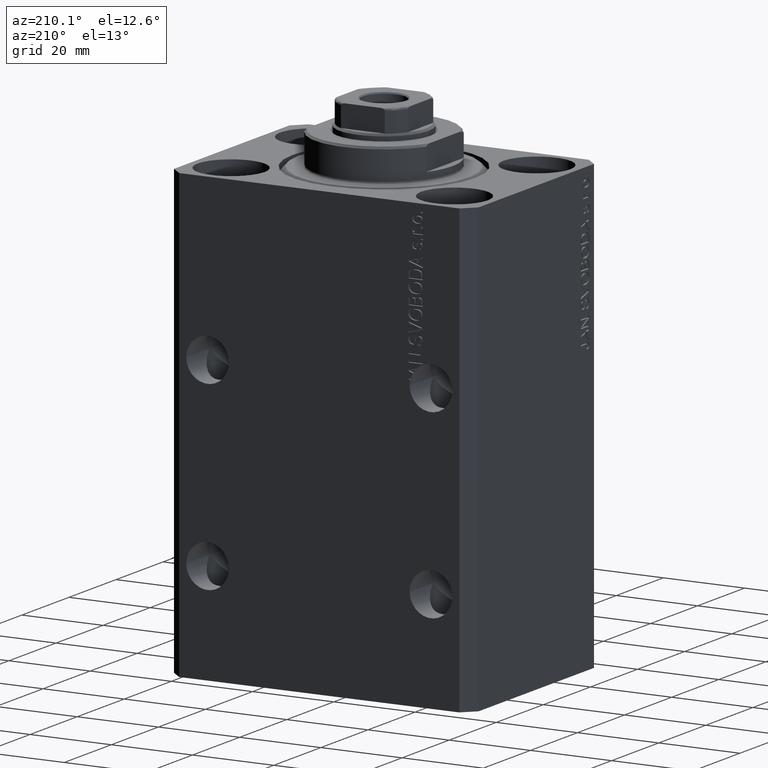
[diagram: clean part render]
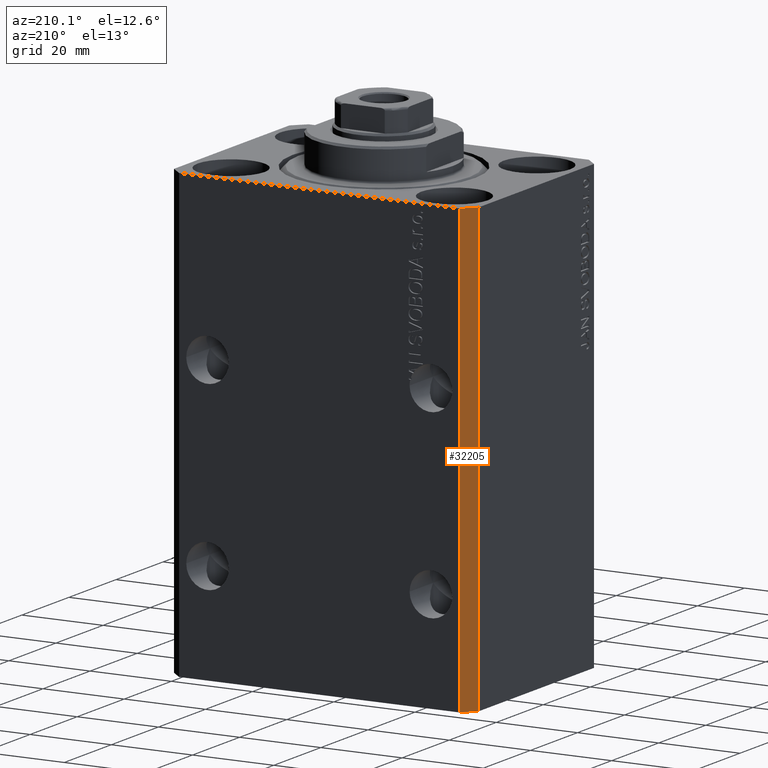
[diagram: same view with one face highlighted and labeled with its STEP entity id]
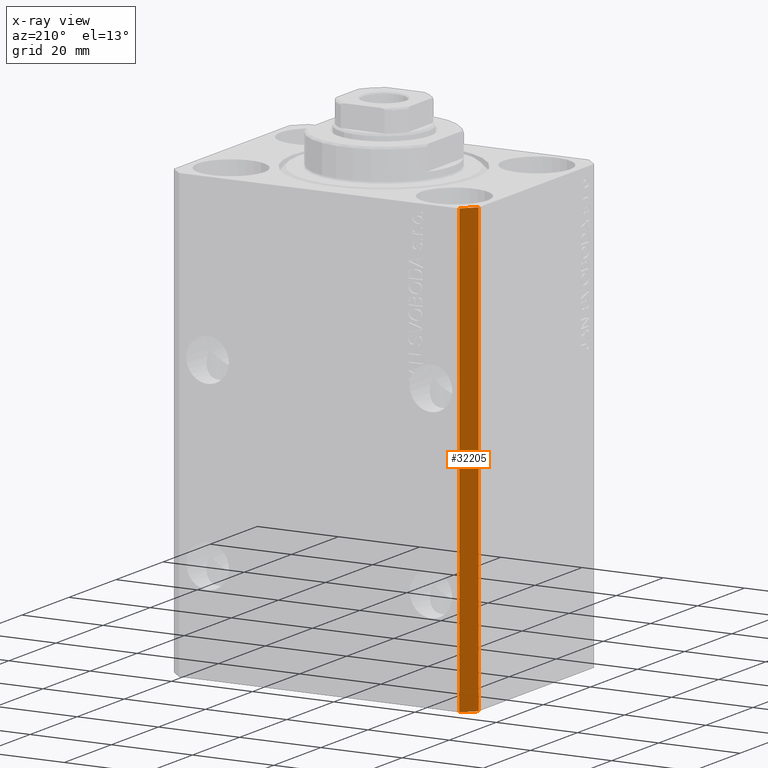
[diagram: x-ray of the same camera — body ghosted, the highlighted face saturated]
A machine part, auxiliary view. The second image highlights one B-rep face of the part: STEP entity #32205.
The next image is the same camera in x-ray: the body ghosted, the highlighted face saturated — about 0% of this face is hidden behind the body in this view.
In plain terms, the highlighted planar face has unit normal (-0.7071, 0.7071, 0).
Its self-contained STEP definition (entity closure, byte-faithful):
#1155 = CARTESIAN_POINT ( 'NONE',  ( -34.49999999999999289, 27.50000000000000000, -110.0000000000000000 ) ) ;
#1570 = CARTESIAN_POINT ( 'NONE',  ( -34.49999999999999289, 27.50000000000000000, -110.0000000000000000 ) ) ;
#2907 = VERTEX_POINT ( 'NONE', #1570 ) ;
#4815 = CARTESIAN_POINT ( 'NONE',  ( -34.49999999999999289, 27.50000000000000000, 0.000000000000000000 ) ) ;
#6806 = EDGE_CURVE ( 'NONE', #8396, #30100, #11362, .T. ) ;
#7031 = EDGE_CURVE ( 'NONE', #2907, #8396, #35448, .T. ) ;
#7131 = LINE ( 'NONE', #16222, #31528 ) ;
#8113 = PLANE ( 'NONE',  #41415 ) ;
#8396 = VERTEX_POINT ( 'NONE', #15317 ) ;
#10520 = ORIENTED_EDGE ( 'NONE', *, *, #6806, .T. ) ;
#10947 = VECTOR ( 'NONE', #42004, 1000.000000000000000 ) ;
#11362 = LINE ( 'NONE', #29173, #24606 ) ;
#11367 = CARTESIAN_POINT ( 'NONE',  ( -34.49999999999999289, 27.50000000000000000, -110.0000000000000000 ) ) ;
#12025 = EDGE_CURVE ( 'NONE', #2907, #19885, #36176, .T. ) ;
#15317 = CARTESIAN_POINT ( 'NONE',  ( -37.49999999999999289, 24.50000000000000000, -110.0000000000000000 ) ) ;
#16222 = CARTESIAN_POINT ( 'NONE',  ( -34.49999999999999289, 27.50000000000000000, 0.000000000000000000 ) ) ;
#19749 = VECTOR ( 'NONE', #32138, 1000.000000000000000 ) ;
#19885 = VERTEX_POINT ( 'NONE', #4815 ) ;
#21865 = DIRECTION ( 'NONE',  ( -0.7071067811865471286, -0.7071067811865479058, 0.000000000000000000 ) ) ;
#22098 = FACE_OUTER_BOUND ( 'NONE', #42877, .T. ) ;
#22654 = ORIENTED_EDGE ( 'NONE', *, *, #12025, .F. ) ;
#22729 = ORIENTED_EDGE ( 'NONE', *, *, #39458, .F. ) ;
#24606 = VECTOR ( 'NONE', #28499, 1000.000000000000000 ) ;
#26118 = ORIENTED_EDGE ( 'NONE', *, *, #7031, .T. ) ;
#28499 = DIRECTION ( 'NONE',  ( 0.000000000000000000, 0.000000000000000000, 1.000000000000000000 ) ) ;
#29173 = CARTESIAN_POINT ( 'NONE',  ( -37.49999999999999289, 24.50000000000000000, -110.0000000000000000 ) ) ;
#29326 = DIRECTION ( 'NONE',  ( -0.7071067811865479058, 0.7071067811865471286, 0.000000000000000000 ) ) ;
#29769 = DIRECTION ( 'NONE',  ( -0.7071067811865471286, -0.7071067811865479058, 0.000000000000000000 ) ) ;
#30100 = VERTEX_POINT ( 'NONE', #41060 ) ;
#31528 = VECTOR ( 'NONE', #29769, 1000.000000000000000 ) ;
#32138 = DIRECTION ( 'NONE',  ( 0.000000000000000000, 0.000000000000000000, 1.000000000000000000 ) ) ;
#32205 = ADVANCED_FACE ( 'NONE', ( #22098 ), #8113, .T. ) ;
#32502 = CARTESIAN_POINT ( 'NONE',  ( -34.49999999999999289, 27.50000000000000000, -110.0000000000000000 ) ) ;
#35448 = LINE ( 'NONE', #1155, #10947 ) ;
#36176 = LINE ( 'NONE', #11367, #19749 ) ;
#39458 = EDGE_CURVE ( 'NONE', #19885, #30100, #7131, .T. ) ;
#41060 = CARTESIAN_POINT ( 'NONE',  ( -37.49999999999999289, 24.50000000000000000, 0.000000000000000000 ) ) ;
#41415 = AXIS2_PLACEMENT_3D ( 'NONE', #32502, #29326, #21865 ) ;
#42004 = DIRECTION ( 'NONE',  ( -0.7071067811865471286, -0.7071067811865479058, 0.000000000000000000 ) ) ;
#42877 = EDGE_LOOP ( 'NONE', ( #22729, #22654, #26118, #10520 ) ) ;